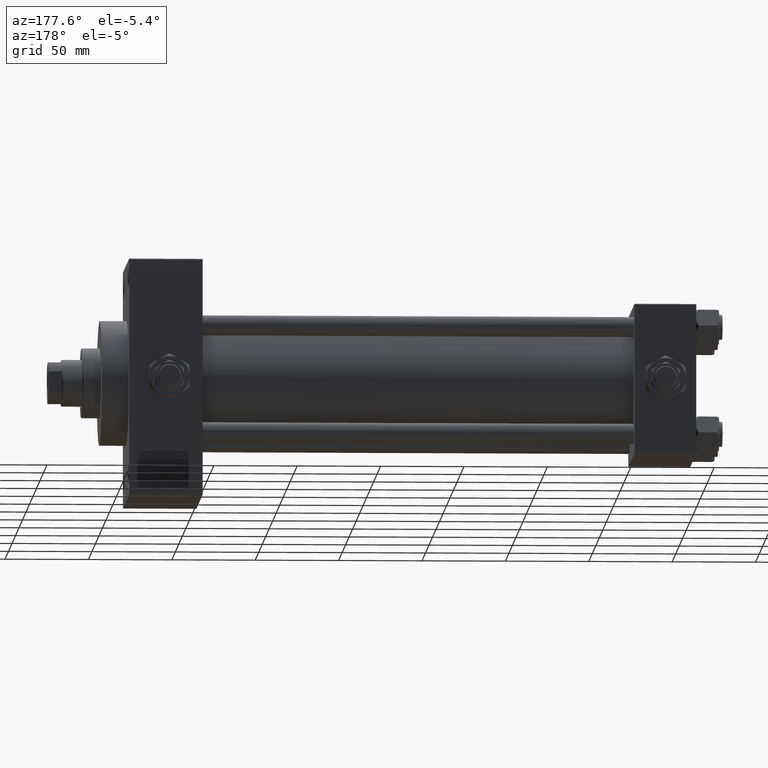
[diagram: clean part render]
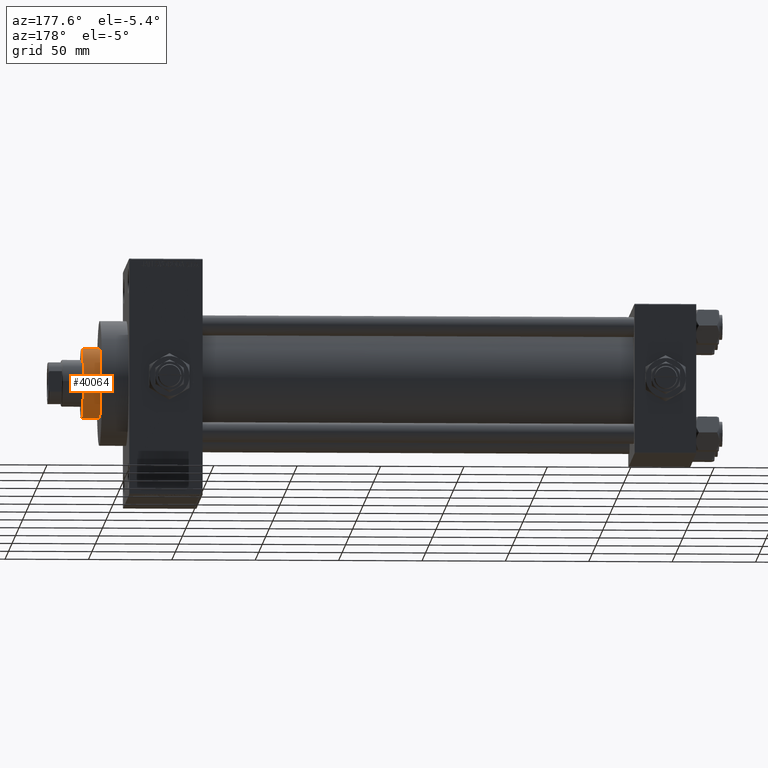
[diagram: same view with one face highlighted and labeled with its STEP entity id]
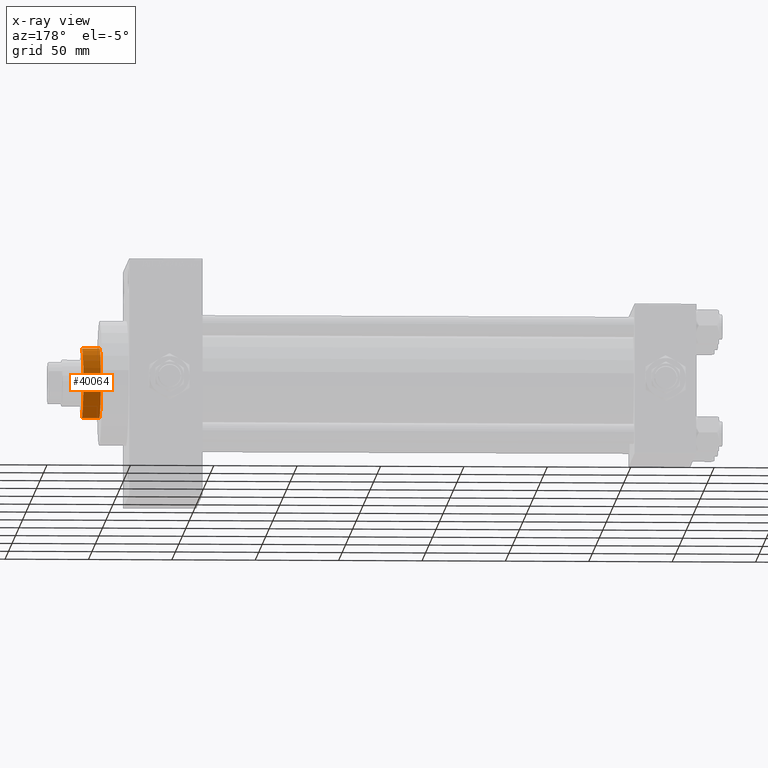
[diagram: x-ray of the same camera — body ghosted, the highlighted face saturated]
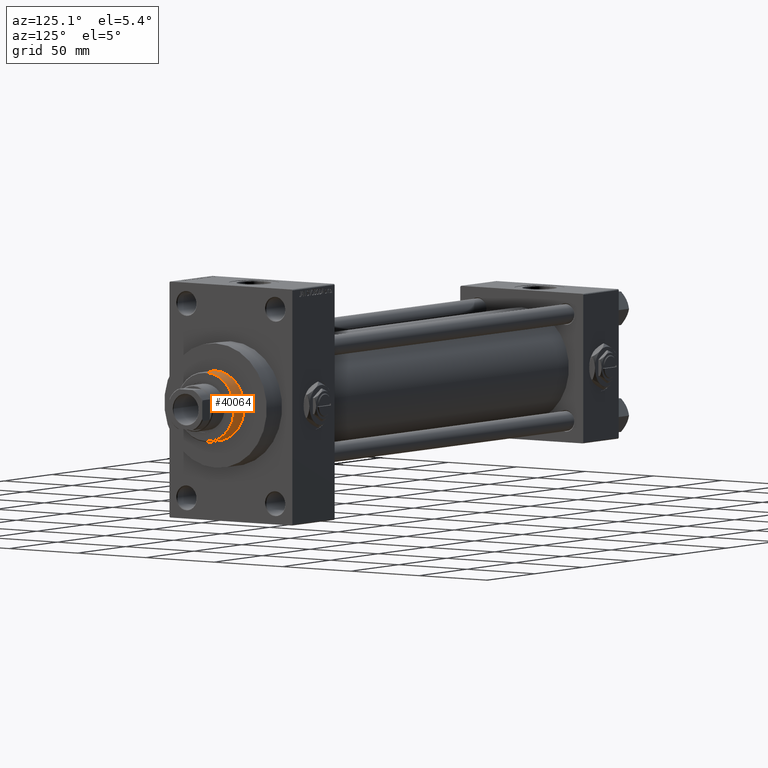
[diagram: same view with one face highlighted and labeled with its STEP entity id]
A machine part, auxiliary view. The second image highlights one B-rep face of the part: STEP entity #40064.
The next image is the same camera in x-ray: the body ghosted, the highlighted face saturated — about 0% of this face is hidden behind the body in this view.
A second angle (auxiliary view) of the same face is appended — the face is thin or edge-on in the first view.
In plain terms, the highlighted cylindrical surface (edge-blend (fillet) strip) has radius 21 mm, axis along (-1, 0, 0).
Its self-contained STEP definition (entity closure, byte-faithful):
#709 = VECTOR ( 'NONE', #43041, 1000.000000000000000 ) ;
#1354 = CYLINDRICAL_SURFACE ( 'NONE', #13353, 21.00000000000000000 ) ;
#3214 = DIRECTION ( 'NONE',  ( -0.000000000000000000, -0.000000000000000000, -1.000000000000000000 ) ) ;
#3445 = DIRECTION ( 'NONE',  ( 1.000000000000000000, 0.000000000000000000, 0.000000000000000000 ) ) ;
#4848 = CARTESIAN_POINT ( 'NONE',  ( 0.000000000000000000, 0.000000000000000000, 54.26000000000000512 ) ) ;
#5466 = CARTESIAN_POINT ( 'NONE',  ( 0.000000000000000000, 0.000000000000000000, 43.25999999999999801 ) ) ;
#6209 = VERTEX_POINT ( 'NONE', #40022 ) ;
#7202 = CARTESIAN_POINT ( 'NONE',  ( 0.000000000000000000, 0.000000000000000000, 53.76000000000001933 ) ) ;
#7918 = VERTEX_POINT ( 'NONE', #8571 ) ;
#8571 = CARTESIAN_POINT ( 'NONE',  ( 21.00000000000000000, 2.571758278209441661E-15, 43.25999999999999801 ) ) ;
#11655 = LINE ( 'NONE', #42304, #709 ) ;
#13353 = AXIS2_PLACEMENT_3D ( 'NONE', #4848, #42750, #38764 ) ;
#13408 = ORIENTED_EDGE ( 'NONE', *, *, #38257, .T. ) ;
#13710 = EDGE_LOOP ( 'NONE', ( #37036, #30607, #31645, #13408 ) ) ;
#14951 = AXIS2_PLACEMENT_3D ( 'NONE', #7202, #21426, #3445 ) ;
#17146 = VERTEX_POINT ( 'NONE', #22837 ) ;
#17349 = VECTOR ( 'NONE', #3214, 1000.000000000000000 ) ;
#18661 = CARTESIAN_POINT ( 'NONE',  ( 21.00000000000000000, 2.571758278209441661E-15, 54.26000000000000512 ) ) ;
#20561 = FACE_OUTER_BOUND ( 'NONE', #13710, .T. ) ;
#21426 = DIRECTION ( 'NONE',  ( 0.000000000000000000, 0.000000000000000000, -1.000000000000000000 ) ) ;
#22837 = CARTESIAN_POINT ( 'NONE',  ( -21.00000000000000000, 0.000000000000000000, 43.25999999999999801 ) ) ;
#24816 = VERTEX_POINT ( 'NONE', #25167 ) ;
#25167 = CARTESIAN_POINT ( 'NONE',  ( -21.00000000000000000, 0.000000000000000000, 53.76000000000001933 ) ) ;
#28402 = DIRECTION ( 'NONE',  ( 0.000000000000000000, 0.000000000000000000, 1.000000000000000000 ) ) ;
#28416 = AXIS2_PLACEMENT_3D ( 'NONE', #5466, #28402, #35630 ) ;
#29159 = LINE ( 'NONE', #18661, #17349 ) ;
#30607 = ORIENTED_EDGE ( 'NONE', *, *, #40344, .T. ) ;
#31645 = ORIENTED_EDGE ( 'NONE', *, *, #42977, .T. ) ;
#33218 = CIRCLE ( 'NONE', #28416, 21.00000000000000000 ) ;
#35630 = DIRECTION ( 'NONE',  ( 1.000000000000000000, 0.000000000000000000, 0.000000000000000000 ) ) ;
#37036 = ORIENTED_EDGE ( 'NONE', *, *, #40355, .F. ) ;
#38047 = CIRCLE ( 'NONE', #14951, 21.00000000000000000 ) ;
#38257 = EDGE_CURVE ( 'NONE', #17146, #7918, #33218, .T. ) ;
#38764 = DIRECTION ( 'NONE',  ( -1.000000000000000000, 0.000000000000000000, 0.000000000000000000 ) ) ;
#40022 = CARTESIAN_POINT ( 'NONE',  ( 21.00000000000000000, 2.571758278209441661E-15, 53.76000000000001933 ) ) ;
#40064 = ADVANCED_FACE ( 'NONE', ( #20561 ), #1354, .T. ) ;
#40344 = EDGE_CURVE ( 'NONE', #6209, #24816, #38047, .T. ) ;
#40355 = EDGE_CURVE ( 'NONE', #6209, #7918, #29159, .T. ) ;
#42304 = CARTESIAN_POINT ( 'NONE',  ( -21.00000000000000000, 0.000000000000000000, 54.26000000000000512 ) ) ;
#42750 = DIRECTION ( 'NONE',  ( -0.000000000000000000, -0.000000000000000000, -1.000000000000000000 ) ) ;
#42977 = EDGE_CURVE ( 'NONE', #24816, #17146, #11655, .T. ) ;
#43041 = DIRECTION ( 'NONE',  ( -0.000000000000000000, -0.000000000000000000, -1.000000000000000000 ) ) ;